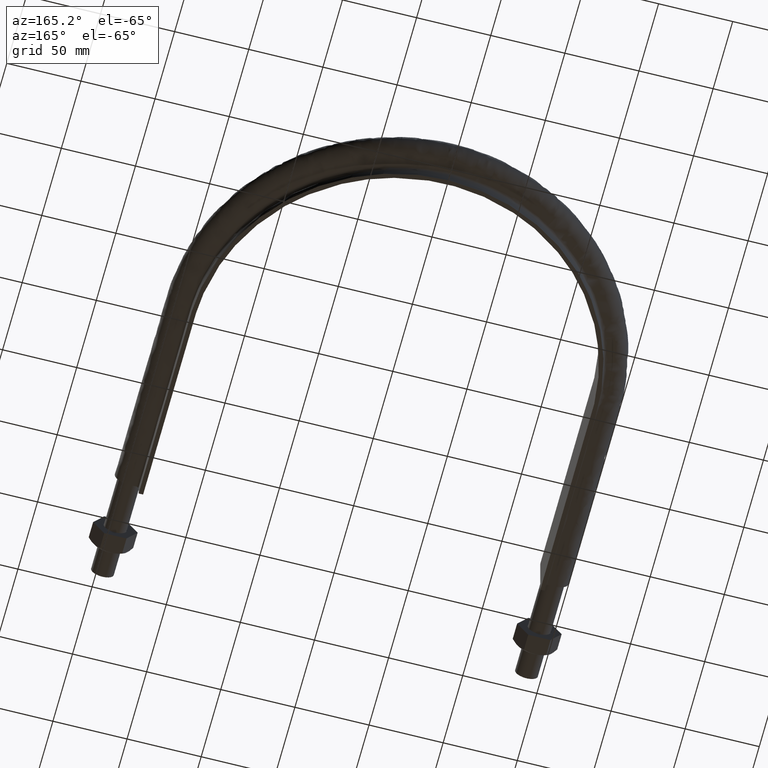
[diagram: clean part render]
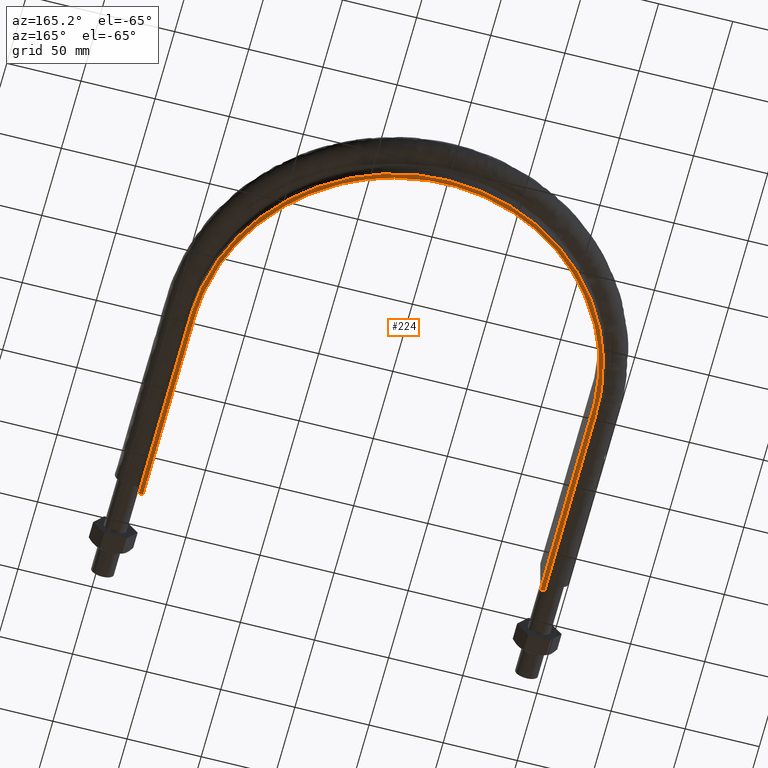
[diagram: same view with one face highlighted and labeled with its STEP entity id]
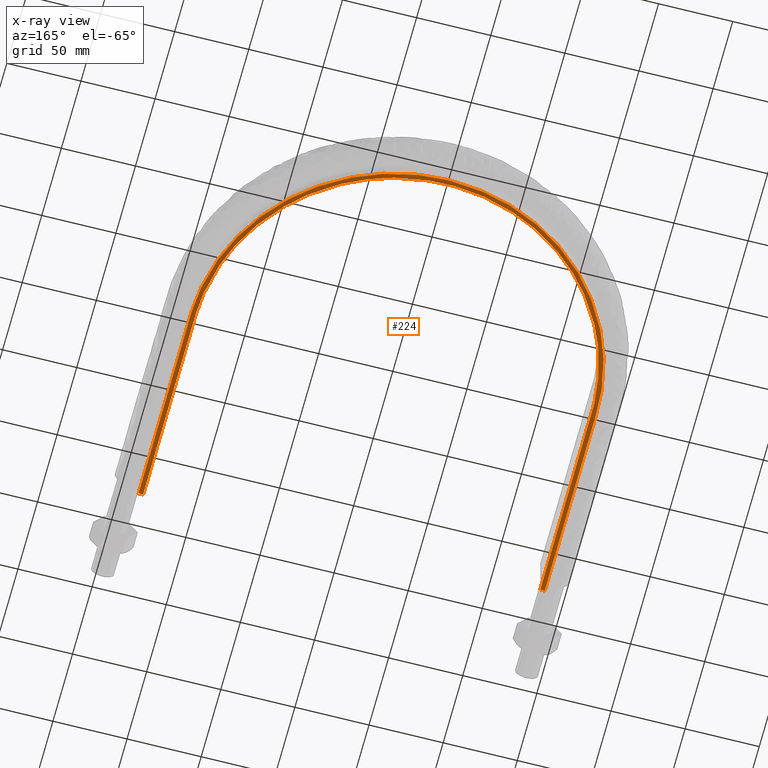
[diagram: x-ray of the same camera — body ghosted, the highlighted face saturated]
A machine part, auxiliary view. The second image highlights one B-rep face of the part: STEP entity #224.
The next image is the same camera in x-ray: the body ghosted, the highlighted face saturated — about 0% of this face is hidden behind the body in this view.
In plain terms, the highlighted planar face has unit normal (0, 0, 1).
Its self-contained STEP definition (entity closure, byte-faithful):
#224 = ADVANCED_FACE( '', ( #271 ), #272, .F. );
#271 = FACE_OUTER_BOUND( '', #917, .T. );
#272 = PLANE( '', #918 );
#917 = EDGE_LOOP( '', ( #1610, #1611, #1612, #1613 ) );
#918 = AXIS2_PLACEMENT_3D( '', #1614, #1615, #1616 );
#1610 = ORIENTED_EDGE( '', *, *, #1846, .F. );
#1611 = ORIENTED_EDGE( '', *, *, #1843, .F. );
#1612 = ORIENTED_EDGE( '', *, *, #1836, .T. );
#1613 = ORIENTED_EDGE( '', *, *, #1847, .F. );
#1614 = CARTESIAN_POINT( '', ( 200.000000000000, 469.500000000000, -20.0000000000000 ) );
#1615 = DIRECTION( '', ( 0.000000000000000, 0.000000000000000, 1.00000000000000 ) );
#1616 = DIRECTION( '', ( 1.22460635382238E-016, 1.00000000000000, 0.000000000000000 ) );
#1836 = EDGE_CURVE( '', #1915, #1913, #1916, .T. );
#1843 = EDGE_CURVE( '', #1915, #1922, #1926, .T. );
#1846 = EDGE_CURVE( '', #1922, #1927, #1931, .T. );
#1847 = EDGE_CURVE( '', #1927, #1913, #1932, .T. );
#1913 = VERTEX_POINT( '', #2255 );
#1915 = VERTEX_POINT( '', #2258 );
#1916 = B_SPLINE_CURVE_WITH_KNOTS( '', 3, ( #2259, #2260, #2261, #2262, #2263, #2264, #2265, #2266, #2267, #2268, #2269, #2270, #2271, #2272, #2273, #2274, #2275, #2276, #2277, #2278, #2279, #2280, #2281, #2282, #2283, #2284, #2285, #2286, #2287, #2288, #2289, #2290, #2291, #2292, #2293, #2294, #2295, #2296, #2297, #2298, #2299, #2300, #2301, #2302, #2303, #2304, #2305, #2306, #2307, #2308, #2309, #2310, #2311, #2312, #2313, #2314, #2315, #2316, #2317, #2318, #2319, #2320, #2321, #2322, #2323, #2324, #2325, #2326, #2327, #2328, #2329, #2330, #2331, #2332, #2333, #2334, #2335, #2336, #2337, #2338, #2339, #2340, #2341, #2342, #2343, #2344, #2345, #2346, #2347, #2348, #2349, #2350, #2351, #2352, #2353, #2354, #2355, #2356, #2357, #2358, #2359, #2360, #2361, #2362, #2363, #2364, #2365 ), .UNSPECIFIED., .F., .F., ( 4, 1, 2, 2, 2, 2, 2, 2, 2, 2, 2, 2, 2, 2, 2, 2, 2, 2, 2, 2, 2, 2, 2, 2, 2, 2, 2, 2, 2, 2, 2, 2, 2, 2, 2, 1, 2, 2, 2, 2, 2, 2, 2, 2, 2, 2, 2, 2, 2, 2, 2, 2, 2, 1, 4 ), ( 1.38777878078145E-017, 0.0874256844655920, 0.131138526698388, 0.133870579337938, 0.136602631977487, 0.142066737256587, 0.152994947814785, 0.174851368931183, 0.180315474210282, 0.183047526849832, 0.185779579489381, 0.196707790047579, 0.218564211163976, 0.229492421722174, 0.232224474361723, 0.234956527001273, 0.240420632280372, 0.262277053396767, 0.273205263954965, 0.275937316594514, 0.278669369234064, 0.284133474513163, 0.305989895629558, 0.316918106187756, 0.322382211466855, 0.325114264106404, 0.327846316745954, 0.349702737862350, 0.360630948420547, 0.366095053699646, 0.368827106339196, 0.371559158978745, 0.393415580095141, 0.415272001211536, 0.418004053851086, 0.420736106490635, 0.426200211769734, 0.437128422327932, 0.458984843444328, 0.461716896083877, 0.464448948723426, 0.469913054002525, 0.480841264560722, 0.502697685677117, 0.508161790956216, 0.513625896235315, 0.524554106793512, 0.546410527909907, 0.551874633189006, 0.557338738468105, 0.562802843747204, 0.565534896386753, 0.568266949026303, 0.611979791259093, 0.699405475724673 ), .UNSPECIFIED. );
#1922 = VERTEX_POINT( '', #2444 );
#1926 = LINE( '', #2450, #2451 );
#1927 = VERTEX_POINT( '', #2452 );
#1931 = B_SPLINE_CURVE_WITH_KNOTS( '', 3, ( #2473, #2474, #2475, #2476, #2477, #2478, #2479, #2480, #2481, #2482, #2483, #2484, #2485, #2486, #2487, #2488, #2489 ), .UNSPECIFIED., .F., .F., ( 4, 3, 1, 1, 1, 1, 1, 1, 1, 3, 4 ), ( -10.0000000000000, -9.00000000000000, -8.00000000000000, -7.00000000000000, -6.00000000000000, -5.00000000000000, -4.00000000000000, -3.00000000000000, -2.00000000000000, -1.00000000000000, 0.000000000000000 ), .UNSPECIFIED. );
#1932 = LINE( '', #2490, #2491 );
#2255 = CARTESIAN_POINT( '', ( 136.950000000000, 69.5000000000000, -20.0000000000000 ) );
#2258 = CARTESIAN_POINT( '', ( -136.950000000000, 69.5000000000001, -20.0000000000000 ) );
#2259 = CARTESIAN_POINT( '', ( -136.950000000000, 69.5000000000001, -20.0000000000000 ) );
#2260 = CARTESIAN_POINT( '', ( -136.950000000000, 98.6419002480975, -20.0000000000000 ) );
#2261 = CARTESIAN_POINT( '', ( -136.950000000000, 142.354750620244, -20.0000000000000 ) );
#2262 = CARTESIAN_POINT( '', ( -136.949999999999, 186.067600992390, -20.0000000000000 ) );
#2263 = CARTESIAN_POINT( '', ( -136.950000000000, 201.549235499191, -20.0000000000000 ) );
#2264 = CARTESIAN_POINT( '', ( -136.952005766823, 202.459921105957, -20.0000000000000 ) );
#2265 = CARTESIAN_POINT( '', ( -136.934979206279, 204.281279481060, -20.0000000000000 ) );
#2266 = CARTESIAN_POINT( '', ( -136.916553871832, 205.191952619813, -20.0000000000000 ) );
#2267 = CARTESIAN_POINT( '', ( -136.834753701177, 207.923955849785, -20.0000000000000 ) );
#2268 = CARTESIAN_POINT( '', ( -136.743599783762, 209.741272047872, -20.0000000000000 ) );
#2269 = CARTESIAN_POINT( '', ( -136.363495553162, 215.166484778744, -20.0000000000000 ) );
#2270 = CARTESIAN_POINT( '', ( -135.967488703048, 218.753870458485, -20.0000000000000 ) );
#2271 = CARTESIAN_POINT( '', ( -134.367551969832, 229.431038801510, -20.0000000000000 ) );
#2272 = CARTESIAN_POINT( '', ( -132.750553866293, 236.435595074196, -20.0000000000000 ) );
#2273 = CARTESIAN_POINT( '', ( -130.033489035348, 245.047725779315, -20.0000000000000 ) );
#2274 = CARTESIAN_POINT( '', ( -129.454886141076, 246.762891350759, -20.0000000000000 ) );
#2275 = CARTESIAN_POINT( '', ( -128.533317502651, 249.324567410147, -20.0000000000000 ) );
#2276 = CARTESIAN_POINT( '', ( -128.217212893148, 250.176620027553, -20.0000000000000 ) );
#2277 = CARTESIAN_POINT( '', ( -127.566740219218, 251.876957051046, -20.0000000000000 ) );
#2278 = CARTESIAN_POINT( '', ( -127.232398800355, 252.725180838083, -20.0000000000000 ) );
#2279 = CARTESIAN_POINT( '', ( -125.522807242116, 256.937555990541, -20.0000000000000 ) );
#2280 = CARTESIAN_POINT( '', ( -124.027890382200, 260.231015655090, -20.0000000000000 ) );
#2281 = CARTESIAN_POINT( '', ( -119.177772488663, 269.891903517813, -20.0000000000000 ) );
#2282 = CARTESIAN_POINT( '', ( -115.456951462215, 276.039688790400, -20.0000000000000 ) );
#2283 = CARTESIAN_POINT( '', ( -109.152951019671, 284.827169774977, -20.0000000000000 ) );
#2284 = CARTESIAN_POINT( '', ( -106.930050833053, 287.683299996958, -20.0000000000000 ) );
#2285 = CARTESIAN_POINT( '', ( -103.994442146735, 291.159156375517, -20.0000000000000 ) );
#2286 = CARTESIAN_POINT( '', ( -103.399206220781, 291.849830869776, -20.0000000000000 ) );
#2287 = CARTESIAN_POINT( '', ( -102.198265091276, 293.215468669275, -20.0000000000000 ) );
#2288 = CARTESIAN_POINT( '', ( -101.591920700931, 293.891203542518, -20.0000000000000 ) );
#2289 = CARTESIAN_POINT( '', ( -99.7553846231902, 295.897299082129, -20.0000000000000 ) );
#2290 = CARTESIAN_POINT( '', ( -98.5077032633133, 297.206566629286, -20.0000000000000 ) );
#2291 = CARTESIAN_POINT( '', ( -92.1539858602997, 303.613835991368, -20.0000000000000 ) );
#2292 = CARTESIAN_POINT( '', ( -86.7024715106608, 308.295179626358, -20.0000000000000 ) );
#2293 = CARTESIAN_POINT( '', ( -77.9891669345064, 314.670721620162, -20.0000000000000 ) );
#2294 = CARTESIAN_POINT( '', ( -74.9946413234060, 316.687249879648, -20.0000000000000 ) );
#2295 = CARTESIAN_POINT( '', ( -71.1363767592708, 319.069086719332, -20.0000000000000 ) );
#2296 = CARTESIAN_POINT( '', ( -70.3589796436348, 319.538526390095, -20.0000000000000 ) );
#2297 = CARTESIAN_POINT( '', ( -68.7925101038824, 320.463324926285, -20.0000000000000 ) );
#2298 = CARTESIAN_POINT( '', ( -68.0028416365663, 320.918994503190, -20.0000000000000 ) );
#2299 = CARTESIAN_POINT( '', ( -65.6265150792902, 322.258978990773, -20.0000000000000 ) );
#2300 = CARTESIAN_POINT( '', ( -64.0295971988741, 323.118030590870, -20.0000000000000 ) );
#2301 = CARTESIAN_POINT( '', ( -55.9824089667684, 327.244365806939, -20.0000000000000 ) );
#2302 = CARTESIAN_POINT( '', ( -49.3439512001537, 330.003826159947, -20.0000000000000 ) );
#2303 = CARTESIAN_POINT( '', ( -39.0910082444983, 333.346268295589, -20.0000000000000 ) );
#2304 = CARTESIAN_POINT( '', ( -35.6241551653288, 334.327634953125, -20.0000000000000 ) );
#2305 = CARTESIAN_POINT( '', ( -30.3492784457225, 335.598384851549, -20.0000000000000 ) );
#2306 = CARTESIAN_POINT( '', ( -28.5785337099373, 335.988365122304, -20.0000000000000 ) );
#2307 = CARTESIAN_POINT( '', ( -25.9034309357598, 336.522102744637, -20.0000000000000 ) );
#2308 = CARTESIAN_POINT( '', ( -25.0077107436046, 336.691611247168, -20.0000000000000 ) );
#2309 = CARTESIAN_POINT( '', ( -23.2172138820088, 337.012112274077, -20.0000000000000 ) );
#2310 = CARTESIAN_POINT( '', ( -22.3218036874214, 337.163270419115, -20.0000000000000 ) );
#2311 = CARTESIAN_POINT( '', ( -14.2616746941679, 338.442909678168, -20.0000000000000 ) );
#2312 = CARTESIAN_POINT( '', ( -7.08688203431526, 339.005162357812, -20.0000000000000 ) );
#2313 = CARTESIAN_POINT( '', ( 3.69045053044869, 338.997356057590, -20.0000000000000 ) );
#2314 = CARTESIAN_POINT( '', ( 7.28543714268980, 338.851850186394, -20.0000000000000 ) );
#2315 = CARTESIAN_POINT( '', ( 12.6817359396741, 338.418941046074, -20.0000000000000 ) );
#2316 = CARTESIAN_POINT( '', ( 14.4811397915355, 338.238800753868, -20.0000000000000 ) );
#2317 = CARTESIAN_POINT( '', ( 17.1812121944216, 337.914258555030, -20.0000000000000 ) );
#2318 = CARTESIAN_POINT( '', ( 18.0813968219193, 337.797056870436, -20.0000000000000 ) );
#2319 = CARTESIAN_POINT( '', ( 19.8820902819457, 337.544430686409, -20.0000000000000 ) );
#2320 = CARTESIAN_POINT( '', ( 20.7835449490405, 337.408813108141, -20.0000000000000 ) );
#2321 = CARTESIAN_POINT( '', ( 28.8670965883813, 336.111328549364, -20.0000000000000 ) );
#2322 = CARTESIAN_POINT( '', ( 35.8703135520973, 334.406800400232, -20.0000000000000 ) );
#2323 = CARTESIAN_POINT( '', ( 49.5251538415538, 329.933849723644, -20.0000000000000 ) );
#2324 = CARTESIAN_POINT( '', ( 56.1748232267833, 327.159514727642, -20.0000000000000 ) );
#2325 = CARTESIAN_POINT( '', ( 63.4492399728082, 323.413652350480, -20.0000000000000 ) );
#2326 = CARTESIAN_POINT( '', ( 64.2555412528504, 322.988297906812, -20.0000000000000 ) );
#2327 = CARTESIAN_POINT( '', ( 65.8566175141632, 322.123190874317, -20.0000000000000 ) );
#2328 = CARTESIAN_POINT( '', ( 68.2414579242991, 320.803750954361, -20.0000000000000 ) );
#2329 = CARTESIAN_POINT( '', ( 70.5763589403747, 319.419469626311, -20.0000000000000 ) );
#2330 = CARTESIAN_POINT( '', ( 75.1805857318925, 316.565763947977, -20.0000000000000 ) );
#2331 = CARTESIAN_POINT( '', ( 78.1627035340807, 314.549856366452, -20.0000000000000 ) );
#2332 = CARTESIAN_POINT( '', ( 86.8543207620393, 308.171383663367, -20.0000000000000 ) );
#2333 = CARTESIAN_POINT( '', ( 92.3077229888376, 303.476301431765, -20.0000000000000 ) );
#2334 = CARTESIAN_POINT( '', ( 98.0418417248402, 297.673728261727, -20.0000000000000 ) );
#2335 = CARTESIAN_POINT( '', ( 98.6733697505284, 297.021731690664, -20.0000000000000 ) );
#2336 = CARTESIAN_POINT( '', ( 99.9251833237752, 295.703141292680, -20.0000000000000 ) );
#2337 = CARTESIAN_POINT( '', ( 100.546136743136, 295.035752086238, -20.0000000000000 ) );
#2338 = CARTESIAN_POINT( '', ( 102.386046552856, 293.018007311469, -20.0000000000000 ) );
#2339 = CARTESIAN_POINT( '', ( 103.581668710415, 291.652670943038, -20.0000000000000 ) );
#2340 = CARTESIAN_POINT( '', ( 107.077810366195, 287.497593093919, -20.0000000000000 ) );
#2341 = CARTESIAN_POINT( '', ( 109.287409665403, 284.648655660809, -20.0000000000000 ) );
#2342 = CARTESIAN_POINT( '', ( 115.563663674952, 275.872310524428, -20.0000000000000 ) );
#2343 = CARTESIAN_POINT( '', ( 119.278439319529, 269.715802833906, -20.0000000000000 ) );
#2344 = CARTESIAN_POINT( '', ( 123.322162063998, 261.629687512519, -20.0000000000000 ) );
#2345 = CARTESIAN_POINT( '', ( 124.100657851929, 259.992770208302, -20.0000000000000 ) );
#2346 = CARTESIAN_POINT( '', ( 125.595826737251, 256.678684334611, -20.0000000000000 ) );
#2347 = CARTESIAN_POINT( '', ( 126.312684101755, 255.000403133012, -20.0000000000000 ) );
#2348 = CARTESIAN_POINT( '', ( 128.350441665646, 249.950404789003, -20.0000000000000 ) );
#2349 = CARTESIAN_POINT( '', ( 129.565681668817, 246.548771227835, -20.0000000000000 ) );
#2350 = CARTESIAN_POINT( '', ( 132.799201309553, 236.243261059046, -20.0000000000000 ) );
#2351 = CARTESIAN_POINT( '', ( 134.406489655848, 229.239070076662, -20.0000000000000 ) );
#2352 = CARTESIAN_POINT( '', ( 135.730368078418, 220.316580552520, -20.0000000000000 ) );
#2353 = CARTESIAN_POINT( '', ( 135.960596827439, 218.523650463586, -20.0000000000000 ) );
#2354 = CARTESIAN_POINT( '', ( 136.350715609652, 214.920622076926, -20.0000000000000 ) );
#2355 = CARTESIAN_POINT( '', ( 136.510773884774, 213.109390090215, -20.0000000000000 ) );
#2356 = CARTESIAN_POINT( '', ( 136.758613068843, 209.474281669830, -20.0000000000000 ) );
#2357 = CARTESIAN_POINT( '', ( 136.846031799769, 207.656639207717, -20.0000000000000 ) );
#2358 = CARTESIAN_POINT( '', ( 136.922369077726, 204.930043041098, -20.0000000000000 ) );
#2359 = CARTESIAN_POINT( '', ( 136.939052762000, 204.021156467247, -20.0000000000000 ) );
#2360 = CARTESIAN_POINT( '', ( 136.951967908155, 202.203333870084, -20.0000000000000 ) );
#2361 = CARTESIAN_POINT( '', ( 136.950000000000, 201.294402200341, -20.0000000000000 ) );
#2362 = CARTESIAN_POINT( '', ( 136.950000000000, 185.842644700991, -20.0000000000000 ) );
#2363 = CARTESIAN_POINT( '', ( 136.950000000000, 142.214152938119, -20.0000000000000 ) );
#2364 = CARTESIAN_POINT( '', ( 136.950000000000, 98.5856611752478, -20.0000000000000 ) );
#2365 = CARTESIAN_POINT( '', ( 136.950000000000, 69.4999999999999, -20.0000000000000 ) );
#2444 = CARTESIAN_POINT( '', ( -133.950000000000, 69.5000000000001, -20.0000000000000 ) );
#2450 = CARTESIAN_POINT( '', ( -200.000000000000, 69.5000000000001, -20.0000000000000 ) );
#2451 = VECTOR( '', #2780, 1000.00000000000 );
#2452 = CARTESIAN_POINT( '', ( 133.950000000000, 69.5000000000000, -20.0000000000000 ) );
#2473 = CARTESIAN_POINT( '', ( -133.950000000000, 69.5000000000001, -20.0000000000000 ) );
#2474 = CARTESIAN_POINT( '', ( -133.950000000000, 113.683333333333, -20.0000000000000 ) );
#2475 = CARTESIAN_POINT( '', ( -133.950000000000, 157.866666666667, -20.0000000000000 ) );
#2476 = CARTESIAN_POINT( '', ( -133.950000000000, 202.050000000000, -20.0000000000000 ) );
#2477 = CARTESIAN_POINT( '', ( -133.950000000000, 219.566032700257, -20.0000000000000 ) );
#2478 = CARTESIAN_POINT( '', ( -126.975474198415, 254.652216480459, -20.0000000000000 ) );
#2479 = CARTESIAN_POINT( '', ( -97.1828205848687, 299.230867859828, -20.0000000000000 ) );
#2480 = CARTESIAN_POINT( '', ( -52.5949635017385, 329.026032119855, -20.0000000000000 ) );
#2481 = CARTESIAN_POINT( '', ( 9.70849429885587E-014, 339.486983940073, -20.0000000000000 ) );
#2482 = CARTESIAN_POINT( '', ( 52.5949635017385, 329.026032119855, -20.0000000000000 ) );
#2483 = CARTESIAN_POINT( '', ( 97.1828205848688, 299.230867859828, -20.0000000000000 ) );
#2484 = CARTESIAN_POINT( '', ( 126.975474198415, 254.652216480460, -20.0000000000000 ) );
#2485 = CARTESIAN_POINT( '', ( 133.950000000000, 219.566032700257, -20.0000000000000 ) );
#2486 = CARTESIAN_POINT( '', ( 133.950000000000, 202.050000000000, -20.0000000000000 ) );
#2487 = CARTESIAN_POINT( '', ( 133.950000000000, 157.866666666667, -20.0000000000000 ) );
#2488 = CARTESIAN_POINT( '', ( 133.950000000000, 113.683333333333, -20.0000000000000 ) );
#2489 = CARTESIAN_POINT( '', ( 133.950000000000, 69.5000000000000, -20.0000000000000 ) );
#2490 = CARTESIAN_POINT( '', ( -200.000000000000, 69.5000000000001, -20.0000000000000 ) );
#2491 = VECTOR( '', #2782, 1000.00000000000 );
#2780 = DIRECTION( '', ( 1.00000000000000, -1.22460635382238E-016, 0.000000000000000 ) );
#2782 = DIRECTION( '', ( 1.00000000000000, -1.22460635382238E-016, 0.000000000000000 ) );